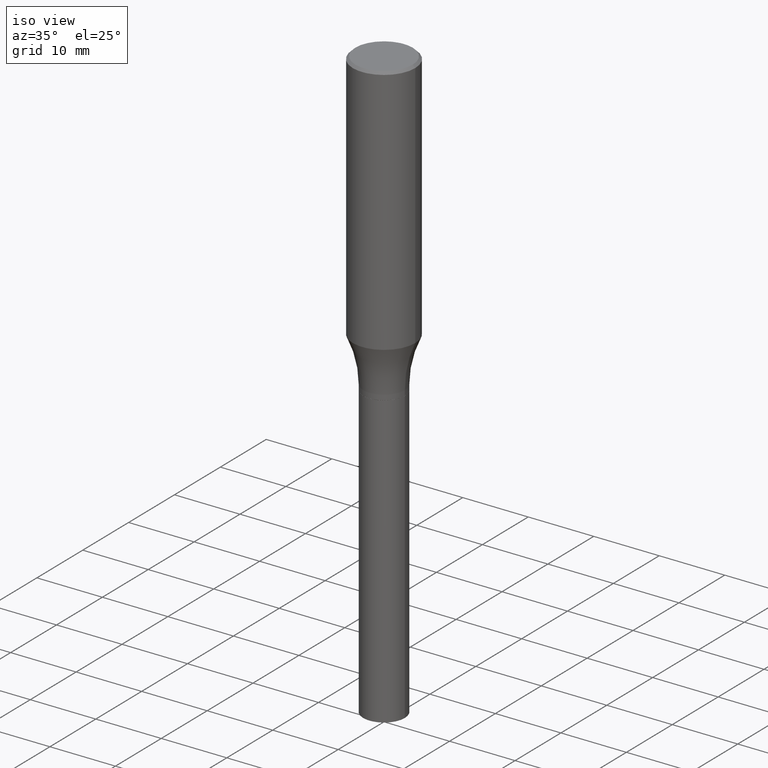
[diagram: clean part render]
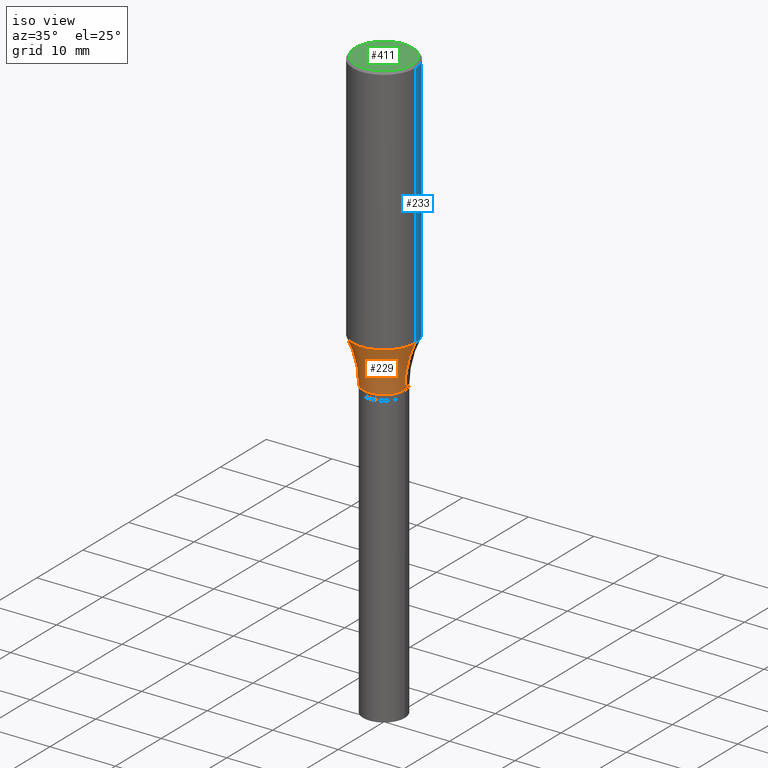
[diagram: same view with three faces highlighted in distinct colors, each labeled with its STEP entity id]
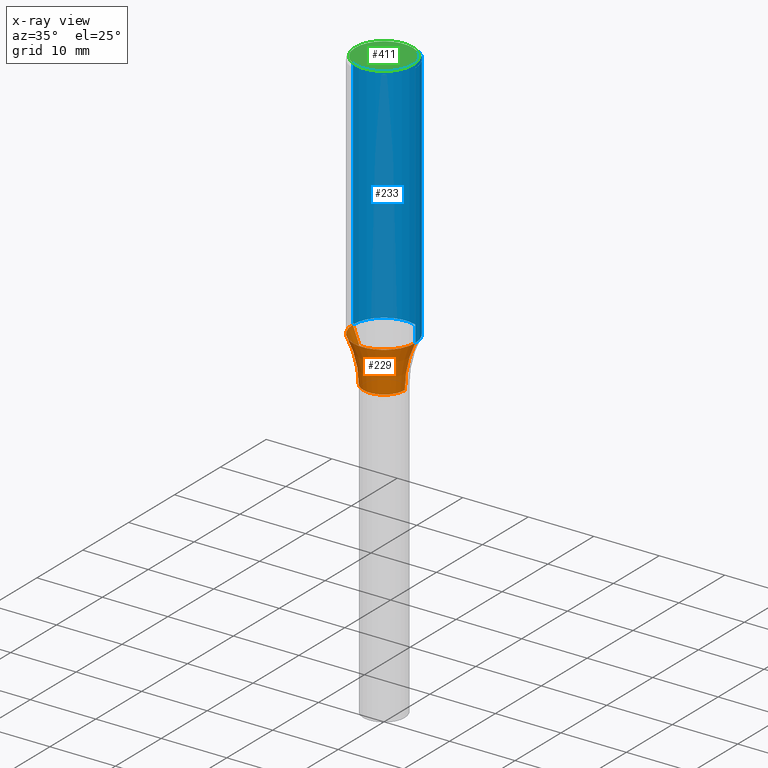
[diagram: x-ray of the same camera — body ghosted, the three highlighted faces saturated]
A machine part, iso view with three faces highlighted in distinct colors.
The next image is the same camera in x-ray (body ghosted, the three faces saturated) — at least one of them is partly hidden behind the body in this view.
Their STEP definitions:

[orange] entity #229 — the highlighted toroidal blend (fillet) surface has major radius 19.05 mm and minor (blend) radius 15.875 mm.
#26 = DIRECTION ( 'NONE',  ( -2.445468806185136597E-29, 3.491481338843145583E-15, 1.000000000000000000 ) ) ;
#38 = CARTESIAN_POINT ( 'NONE',  ( 4.355379943815728162E-29, -6.218328264479641837E-15, -1.780999999999999917 ) ) ;
#50 = CARTESIAN_POINT ( 'NONE',  ( 3.689157981581848142E-29, -5.267139869524930466E-15, -1.508568816028707404 ) ) ;
#74 = EDGE_CURVE ( 'NONE', #176, #417, #159, .T. ) ;
#85 = EDGE_LOOP ( 'NONE', ( #373, #91, #190, #131 ) ) ;
#91 = ORIENTED_EDGE ( 'NONE', *, *, #245, .T. ) ;
#95 = AXIS2_PLACEMENT_3D ( 'NONE', #38, #262, #288 ) ;
#108 = DIRECTION ( 'NONE',  ( 7.105427357601001859E-15, 1.000000000000000000, -3.491481338843145583E-15 ) ) ;
#131 = ORIENTED_EDGE ( 'NONE', *, *, #374, .F. ) ;
#151 = DIRECTION ( 'NONE',  ( -1.000000000000000000, 7.105427357601001859E-15, 0.000000000000000000 ) ) ;
#159 = CIRCLE ( 'NONE', #414, 0.1875000000000000555 ) ;
#174 = TOROIDAL_SURFACE ( 'NONE', #95, 0.7499999999999998890, 0.6250000000000000000 ) ;
#176 = VERTEX_POINT ( 'NONE', #257 ) ;
#190 = ORIENTED_EDGE ( 'NONE', *, *, #462, .T. ) ;
#199 = DIRECTION ( 'NONE',  ( 1.000000000000000000, -6.982962677686265133E-15, 0.000000000000000000 ) ) ;
#200 = DIRECTION ( 'NONE',  ( -2.445468806185136597E-29, 3.491481338843145583E-15, 1.000000000000000000 ) ) ;
#208 = VERTEX_POINT ( 'NONE', #460 ) ;
#216 = AXIS2_PLACEMENT_3D ( 'NONE', #277, #26, #380 ) ;
#227 = DIRECTION ( 'NONE',  ( 1.000000000000000000, -6.982962677686265922E-15, 0.000000000000000000 ) ) ;
#229 = ADVANCED_FACE ( 'NONE', ( #464 ), #174, .F. ) ;
#235 = CIRCLE ( 'NONE', #216, 0.1249999999999999584 ) ;
#245 = EDGE_CURVE ( 'NONE', #176, #456, #250, .T. ) ;
#250 = CIRCLE ( 'NONE', #459, 0.6250000000000000000 ) ;
#253 = CARTESIAN_POINT ( 'NONE',  ( 0.1875000000000000555, -6.576445371591104685E-15, -1.508568816028707404 ) ) ;
#257 = CARTESIAN_POINT ( 'NONE',  ( -0.1875000000000000555, -3.934872239974741828E-15, -1.508568816028707404 ) ) ;
#262 = DIRECTION ( 'NONE',  ( -2.445468806185136597E-29, 3.491481338843145583E-15, 1.000000000000000000 ) ) ;
#276 = CARTESIAN_POINT ( 'NONE',  ( -0.1249999999999999584, -4.632511042377129611E-15, -1.780999999999999917 ) ) ;
#277 = CARTESIAN_POINT ( 'NONE',  ( 4.355379943815728162E-29, -6.218328264479641837E-15, -1.780999999999999917 ) ) ;
#287 = AXIS2_PLACEMENT_3D ( 'NONE', #398, #468, #199 ) ;
#288 = DIRECTION ( 'NONE',  ( 1.000000000000000000, -6.982962677686265922E-15, 4.883557194083112340E-29 ) ) ;
#350 = CIRCLE ( 'NONE', #287, 0.6250000000000000000 ) ;
#373 = ORIENTED_EDGE ( 'NONE', *, *, #74, .F. ) ;
#374 = EDGE_CURVE ( 'NONE', #417, #208, #350, .T. ) ;
#380 = DIRECTION ( 'NONE',  ( 1.000000000000000000, -6.982962677686265133E-15, 0.000000000000000000 ) ) ;
#395 = CARTESIAN_POINT ( 'NONE',  ( -0.7499999999999998890, -8.892577462788912314E-16, -1.780999999999999917 ) ) ;
#398 = CARTESIAN_POINT ( 'NONE',  ( 0.7499999999999998890, -1.145555027274434187E-14, -1.780999999999999917 ) ) ;
#414 = AXIS2_PLACEMENT_3D ( 'NONE', #50, #200, #227 ) ;
#417 = VERTEX_POINT ( 'NONE', #253 ) ;
#456 = VERTEX_POINT ( 'NONE', #276 ) ;
#459 = AXIS2_PLACEMENT_3D ( 'NONE', #395, #108, #151 ) ;
#460 = CARTESIAN_POINT ( 'NONE',  ( 0.1249999999999999584, -7.091198599190425175E-15, -1.780999999999999917 ) ) ;
#462 = EDGE_CURVE ( 'NONE', #456, #208, #235, .T. ) ;
#464 = FACE_OUTER_BOUND ( 'NONE', #85, .T. ) ;
#468 = DIRECTION ( 'NONE',  ( -6.982962677686266711E-15, -1.000000000000000000, 3.491481338843145583E-15 ) ) ;

[blue] entity #233 — the highlighted cylindrical surface (partial cylindrical patch) has radius 4.7625 mm, axis along (-0, 0, 1).
#2 = DIRECTION ( 'NONE',  ( 1.000000000000000000, -6.982962677686265922E-15, 4.876176775795935793E-29 ) ) ;
#6 = EDGE_CURVE ( 'NONE', #176, #272, #51, .T. ) ;
#10 = AXIS2_PLACEMENT_3D ( 'NONE', #12, #252, #251 ) ;
#12 = CARTESIAN_POINT ( 'NONE',  ( 3.689157981581848142E-29, -5.267139869524930466E-15, -1.508568816028707404 ) ) ;
#16 = EDGE_LOOP ( 'NONE', ( #64, #370, #96, #81 ) ) ;
#17 = EDGE_CURVE ( 'NONE', #417, #43, #453, .T. ) ;
#21 = DIRECTION ( 'NONE',  ( -2.445468806185136877E-29, 3.491481338843145188E-15, 1.000000000000000000 ) ) ;
#43 = VERTEX_POINT ( 'NONE', #148 ) ;
#51 = LINE ( 'NONE', #341, #143 ) ;
#64 = ORIENTED_EDGE ( 'NONE', *, *, #313, .T. ) ;
#65 = EDGE_CURVE ( 'NONE', #43, #272, #93, .T. ) ;
#81 = ORIENTED_EDGE ( 'NONE', *, *, #17, .F. ) ;
#93 = CIRCLE ( 'NONE', #349, 0.1875000000000000278 ) ;
#96 = ORIENTED_EDGE ( 'NONE', *, *, #65, .F. ) ;
#137 = CARTESIAN_POINT ( 'NONE',  ( 0.1875000000000000555, -1.309305502066175205E-15, 9.142831454617382414E-30 ) ) ;
#143 = VECTOR ( 'NONE', #343, 39.37007874015748143 ) ;
#148 = CARTESIAN_POINT ( 'NONE',  ( 0.1875000000000000278, -1.338715594664809642E-15, -0.01499999999999999944 ) ) ;
#164 = CYLINDRICAL_SURFACE ( 'NONE', #282, 0.1875000000000000555 ) ;
#176 = VERTEX_POINT ( 'NONE', #257 ) ;
#178 = CIRCLE ( 'NONE', #10, 0.1875000000000000555 ) ;
#184 = CARTESIAN_POINT ( 'NONE',  ( 0.000000000000000000, 0.000000000000000000, 0.000000000000000000 ) ) ;
#202 = VECTOR ( 'NONE', #21, 39.37007874015748143 ) ;
#233 = ADVANCED_FACE ( 'NONE', ( #431 ), #164, .T. ) ;
#251 = DIRECTION ( 'NONE',  ( 1.000000000000000000, -6.982962677686265922E-15, 0.000000000000000000 ) ) ;
#252 = DIRECTION ( 'NONE',  ( -2.445468806185136597E-29, 3.491481338843145583E-15, 1.000000000000000000 ) ) ;
#253 = CARTESIAN_POINT ( 'NONE',  ( 0.1875000000000000555, -6.576445371591104685E-15, -1.508568816028707404 ) ) ;
#257 = CARTESIAN_POINT ( 'NONE',  ( -0.1875000000000000555, -3.934872239974741828E-15, -1.508568816028707404 ) ) ;
#272 = VERTEX_POINT ( 'NONE', #389 ) ;
#282 = AXIS2_PLACEMENT_3D ( 'NONE', #184, #295, #2 ) ;
#295 = DIRECTION ( 'NONE',  ( -2.445468806185136597E-29, 3.491481338843145583E-15, 1.000000000000000000 ) ) ;
#313 = EDGE_CURVE ( 'NONE', #417, #176, #178, .T. ) ;
#341 = CARTESIAN_POINT ( 'NONE',  ( -0.1875000000000000555, 1.332267629550188243E-15, -9.223003294227950793E-30 ) ) ;
#343 = DIRECTION ( 'NONE',  ( -2.445468806185136877E-29, 3.491481338843145188E-15, 1.000000000000000000 ) ) ;
#349 = AXIS2_PLACEMENT_3D ( 'NONE', #439, #444, #359 ) ;
#359 = DIRECTION ( 'NONE',  ( 1.000000000000000000, -6.982962677686265922E-15, 0.000000000000000000 ) ) ;
#370 = ORIENTED_EDGE ( 'NONE', *, *, #6, .T. ) ;
#389 = CARTESIAN_POINT ( 'NONE',  ( -0.1875000000000000278, 1.256933281983527732E-15, -0.01499999999999999944 ) ) ;
#417 = VERTEX_POINT ( 'NONE', #253 ) ;
#431 = FACE_OUTER_BOUND ( 'NONE', #16, .T. ) ;
#439 = CARTESIAN_POINT ( 'NONE',  ( 3.668203209277705088E-31, -5.237222008264718399E-17, -0.01499999999999999944 ) ) ;
#444 = DIRECTION ( 'NONE',  ( -2.445468806185136597E-29, 3.491481338843145583E-15, 1.000000000000000000 ) ) ;
#453 = LINE ( 'NONE', #137, #202 ) ;

[green] entity #411 — the highlighted planar face has unit normal (0, -0, -1).
#14 = CARTESIAN_POINT ( 'NONE',  ( -0.1725000000000000144, 1.230747171942204192E-15, -6.181208964945233235E-17 ) ) ;
#23 = CIRCLE ( 'NONE', #418, 0.1725000000000000144 ) ;
#73 = PLANE ( 'NONE',  #207 ) ;
#83 = CARTESIAN_POINT ( 'NONE',  ( 1.204561061900881047E-15, 0.1725000000000000144, -6.331865757751645696E-16 ) ) ;
#89 = AXIS2_PLACEMENT_3D ( 'NONE', #386, #181, #318 ) ;
#158 = FACE_OUTER_BOUND ( 'NONE', #346, .T. ) ;
#181 = DIRECTION ( 'NONE',  ( -2.445468806185136597E-29, 3.491481338843145583E-15, 1.000000000000000000 ) ) ;
#207 = AXIS2_PLACEMENT_3D ( 'NONE', #83, #430, #362 ) ;
#218 = ORIENTED_EDGE ( 'NONE', *, *, #220, .T. ) ;
#220 = EDGE_CURVE ( 'NONE', #457, #324, #454, .T. ) ;
#236 = CARTESIAN_POINT ( 'NONE',  ( 1.511595370828340099E-45, -2.158157575259326350E-31, -6.181208964944381512E-17 ) ) ;
#238 = CARTESIAN_POINT ( 'NONE',  ( 0.1725000000000000144, -1.261075749640199505E-15, -6.181208964943518695E-17 ) ) ;
#318 = DIRECTION ( 'NONE',  ( 1.000000000000000000, -6.982962677686266711E-15, 4.874714842691873619E-29 ) ) ;
#324 = VERTEX_POINT ( 'NONE', #14 ) ;
#346 = EDGE_LOOP ( 'NONE', ( #355, #218 ) ) ;
#355 = ORIENTED_EDGE ( 'NONE', *, *, #458, .T. ) ;
#362 = DIRECTION ( 'NONE',  ( -1.000000000000000000, 6.982962677686265922E-15, -4.876176775795935793E-29 ) ) ;
#378 = DIRECTION ( 'NONE',  ( 1.000000000000000000, -6.982962677686266711E-15, 4.874714842691873619E-29 ) ) ;
#386 = CARTESIAN_POINT ( 'NONE',  ( 1.511595370828340099E-45, -2.158157575259326350E-31, -6.181208964944381512E-17 ) ) ;
#411 = ADVANCED_FACE ( 'NONE', ( #158 ), #73, .F. ) ;
#416 = DIRECTION ( 'NONE',  ( -2.445468806185136597E-29, 3.491481338843145583E-15, 1.000000000000000000 ) ) ;
#418 = AXIS2_PLACEMENT_3D ( 'NONE', #236, #416, #378 ) ;
#430 = DIRECTION ( 'NONE',  ( 2.438088387897960049E-29, -3.491481338843145188E-15, -1.000000000000000000 ) ) ;
#454 = CIRCLE ( 'NONE', #89, 0.1725000000000000144 ) ;
#457 = VERTEX_POINT ( 'NONE', #238 ) ;
#458 = EDGE_CURVE ( 'NONE', #324, #457, #23, .T. ) ;